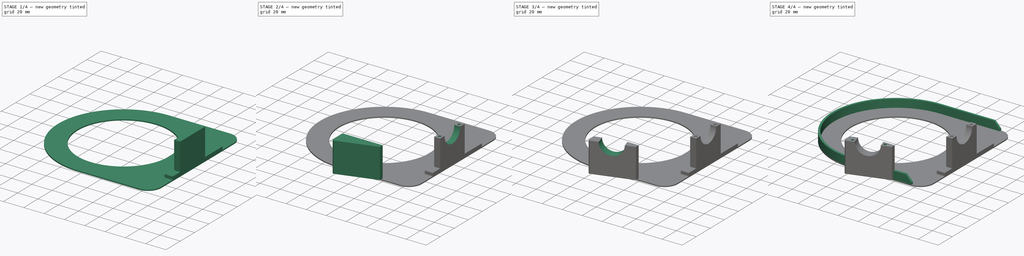
[diagram: build sequence overview — one tinted view per stage of 4, left to right]
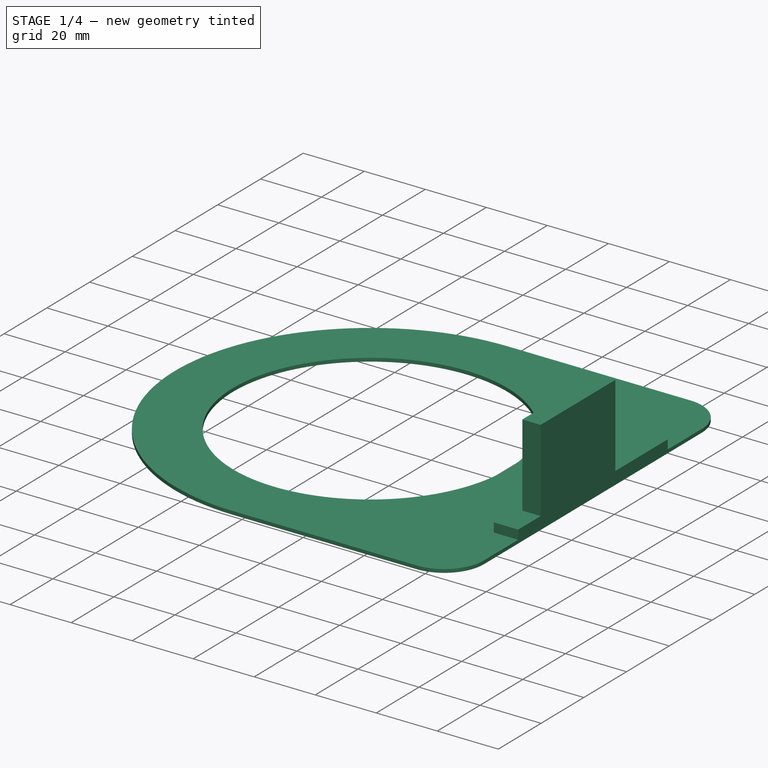
[diagram: stage 1 of 4 — iso view after this stage's code; geometry added in this stage tinted green]
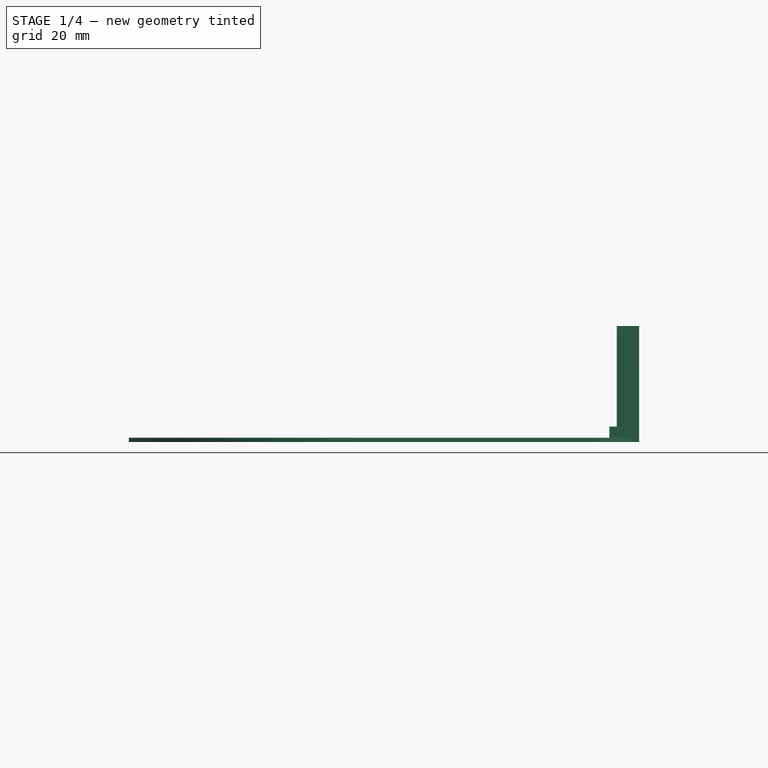
[diagram: stage 1 of 4 — front view after this stage's code; geometry added in this stage tinted green]
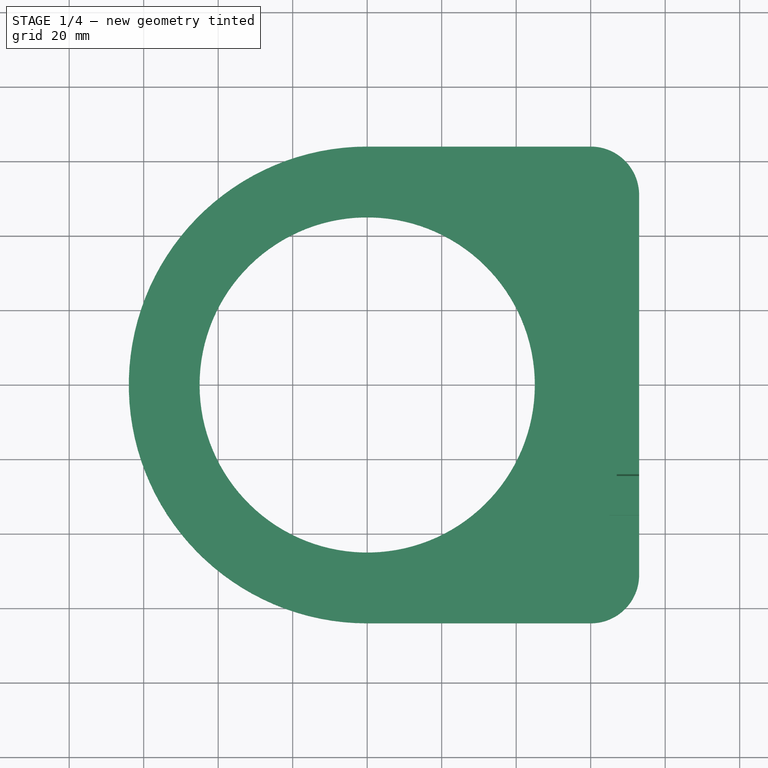
[diagram: stage 1 of 4 — top view after this stage's code; geometry added in this stage tinted green]
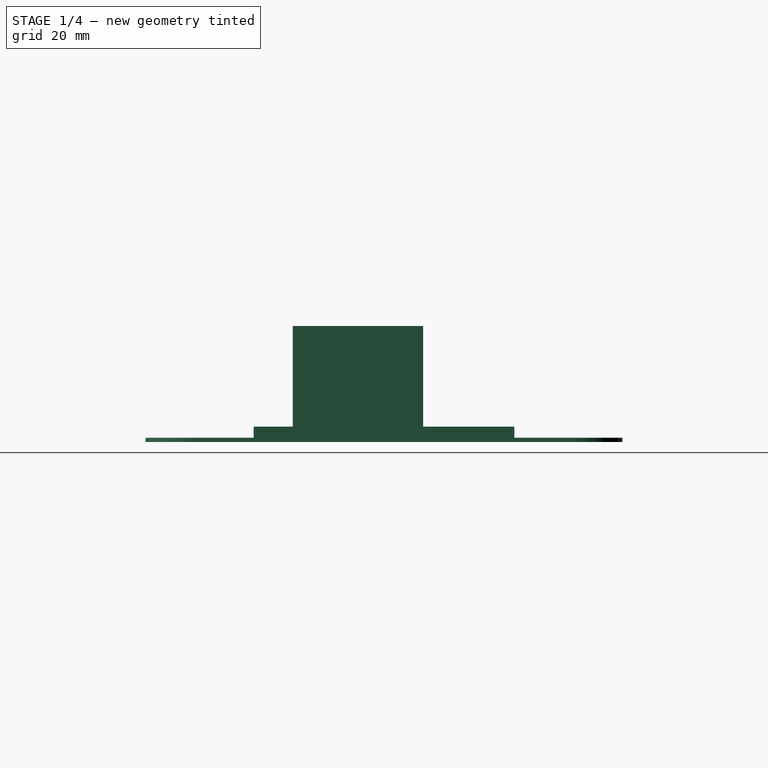
[diagram: stage 1 of 4 — right view after this stage's code; geometry added in this stage tinted green]
FCSTD DOCUMENT  (FreeCAD 0.16R)
Label: chainguard25TRev1.V3
License: All rights reserved
LicenseURL: http://en.wikipedia.org/wiki/All_rights_reserved
objects: Sketcher::SketchObject×11, PartDesign::Pocket×6, PartDesign::Pad×5
note: 33 computed .brp shape members not serialized (recipe doc carries the construction recipe); baked Part::Feature solids carry a one-line shape summary decoded from their .brp

FEATURE [Sketcher::SketchObject] Sketch001
  sketch-geometry (7):
    g0: LineSegment StartX=60 StartY=64 StartZ=0 EndX=0 EndY=64 EndZ=0
    g1: LineSegment StartX=60 StartY=-64 StartZ=0 EndX=0 EndY=-64 EndZ=0
    g2: ArcOfCircle CenterX=8.21903e-05 CenterY=0 CenterZ=0 NormalX=0 NormalY=0 NormalZ=1 Radius=64 StartAngle=1.5708 EndAngle=4.71239
    g3: Circle CenterX=0 CenterY=0 CenterZ=0 NormalX=0 NormalY=0 NormalZ=1 Radius=45
    g4: ArcOfCircle CenterX=60 CenterY=51 CenterZ=0 NormalX=0 NormalY=0 NormalZ=1 Radius=13 StartAngle=0 EndAngle=1.5708
    g5: ArcOfCircle CenterX=60 CenterY=-51 CenterZ=0 NormalX=0 NormalY=0 NormalZ=1 Radius=13 StartAngle=4.71239 EndAngle=6.28319
    g6: LineSegment StartX=73 StartY=51 StartZ=0 EndX=73 EndY=-51 EndZ=0
  constraints (23):
    c: Horizontal(g0)
    c: Horizontal(g1)
    c: Coincident(g2,g1)
    c: Coincident(g0,g2)
    c: DistanceX(g1,g0) = 0
    c: Equal(g0,g1)
    c: DistanceY(g1,g0) = 128
    c: Radius(g2) = 64
    c: Symmetric(g1,g0,g-1)
    c: Radius(g3) = 45
    c: Coincident(g3,g-1)
    c: PointOnObject(g4,g0)
    c: Radius(g4) = 13
    c: DistanceX(g0,g0) = 60
    c: Equal(g5,g4)
    c: Vertical(g6)
    c: DistanceX(g-1,g6) = 73
    c: Symmetric(g6,g6,g-1)
    c: DistanceY(g6,g6) = 102
    c: Coincident(g4,g6)
    c: Coincident(g5,g6)
    c: Coincident(g1,g5)
    c: Coincident(g0,g4)
FEATURE [PartDesign::Pad] Pad  label="Faceplate"
  Length = 1.12
  Length2 = 100
  Reversed = true
  Sketch = -> Sketch001
  Type = 0
FEATURE [Sketcher::SketchObject] Sketch004  label="BossST"
  sketch-geometry (5):
    g0: LineSegment StartX=41.8431 StartY=-62 StartZ=0 EndX=1.8431 EndY=-62 EndZ=0
    g1: LineSegment StartX=1.8431 StartY=-62 StartZ=0 EndX=1.8431 EndY=-75.5264 EndZ=0
    g2: LineSegment StartX=41.8431 StartY=-66 StartZ=0 EndX=41.8431 EndY=-62 EndZ=0
    g3: LineSegment StartX=4.42785 StartY=-77.439 StartZ=0 EndX=41.8431 EndY=-66 EndZ=0
    g4: ArcOfCircle CenterX=3.8431 CenterY=-75.5264 CenterZ=0 NormalX=0 NormalY=0 NormalZ=1 Radius=2 StartAngle=3.14159 EndAngle=5.00909
  constraints (13):
    c: Coincident(g0,g1)
    c: Vertical(g1)
    c: Vertical(g2)
    c: DistanceX(g0,g0) = 40
    c: Angle(g3) = 0.296706
    c: DistanceY(g0,g-1) = 62
    c: Horizontal(g0)
    c: DistanceY(g2,g2) = 4
    c: Coincident(g2,g0)
    c: Coincident(g3,g2)
    c: Tangent(g3,g4) = -1.5708
    c: Tangent(g1,g4) = -1.5708
    c: Radius(g4) = 2
FEATURE [Sketcher::SketchObject] Sketch
  Support = -> Pad [Face8]
  sketch-geometry (4):
    g0: LineSegment StartX=65 StartY=35 StartZ=0 EndX=73 EndY=35 EndZ=0
    g1: LineSegment StartX=73 StartY=35 StartZ=0 EndX=73 EndY=-35 EndZ=0
    g2: LineSegment StartX=73 StartY=-35 StartZ=0 EndX=65 EndY=-35 EndZ=0
    g3: LineSegment StartX=65 StartY=-35 StartZ=0 EndX=65 EndY=35 EndZ=0
  constraints (12):
    c: Coincident(g0,g1)
    c: Coincident(g1,g2)
    c: Coincident(g2,g3)
    c: Coincident(g3,g0)
    c: Horizontal(g0)
    c: Horizontal(g2)
    c: Vertical(g1)
    c: Vertical(g3)
    c: Symmetric(g0,g2,g-1)
    c: DistanceX(g0,g0) = 8
    c: DistanceX(g-1,g0) = 73
    c: DistanceY(g3,g3) = 70
FEATURE [PartDesign::Pad] Pad003  label="SyncStiffener"
  Length = 3
  Length2 = 100
  Sketch = -> Sketch
  Type = 0
FEATURE [Sketcher::SketchObject] Sketch008
  Placement = pos=(0,0,3) rot=(0,0,1;0rad)
  Support = -> Pad003 [Face14]
  sketch-geometry (4):
    g0: LineSegment StartX=67 StartY=10.5 StartZ=0 EndX=73 EndY=10.5 EndZ=0
    g1: LineSegment StartX=73 StartY=10.5 StartZ=0 EndX=73 EndY=-24.5 EndZ=0
    g2: LineSegment StartX=73 StartY=-24.5 StartZ=0 EndX=67 EndY=-24.5 EndZ=0
    g3: LineSegment StartX=67 StartY=-24.5 StartZ=0 EndX=67 EndY=10.5 EndZ=0
  constraints (12):
    c: Coincident(g0,g1)
    c: Coincident(g1,g2)
    c: Coincident(g2,g3)
    c: Coincident(g3,g0)
    c: Horizontal(g0)
    c: Horizontal(g2)
    c: Vertical(g1)
    c: Vertical(g3)
    c: DistanceX(g0) = 73
    c: DistanceX(g0,g0) = 6
    c: DistanceY(g1,g1) = 35
    c: DistanceY(g-1,g0) = 10.5
FEATURE [PartDesign::Pad] Pad004  label="SyncTubeBoss"
  Length = 27
  Length2 = 100
  Sketch = -> Sketch008
  Type = 0
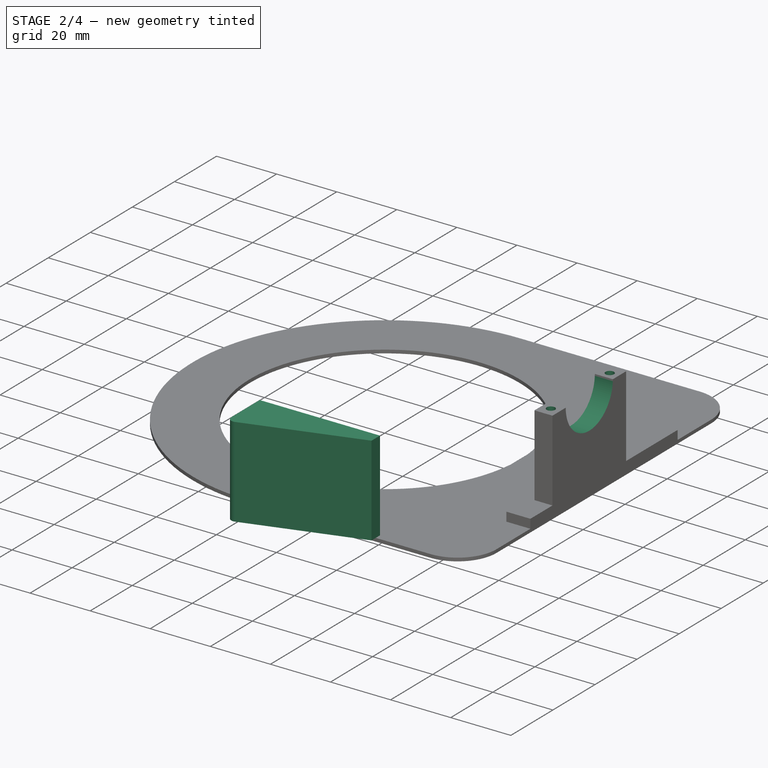
[diagram: stage 2 of 4 — iso view after this stage's code; geometry added in this stage tinted green]
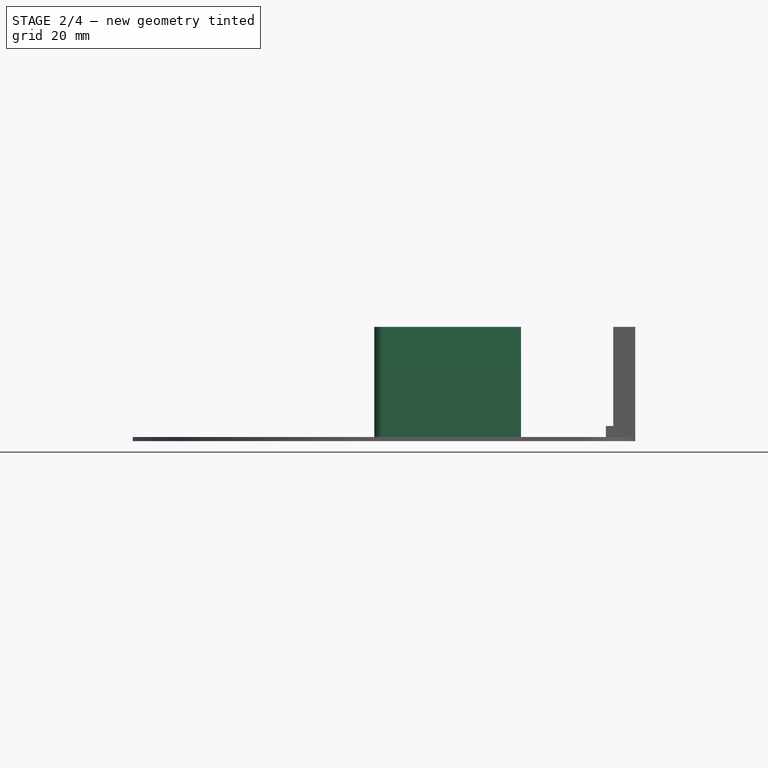
[diagram: stage 2 of 4 — front view after this stage's code; geometry added in this stage tinted green]
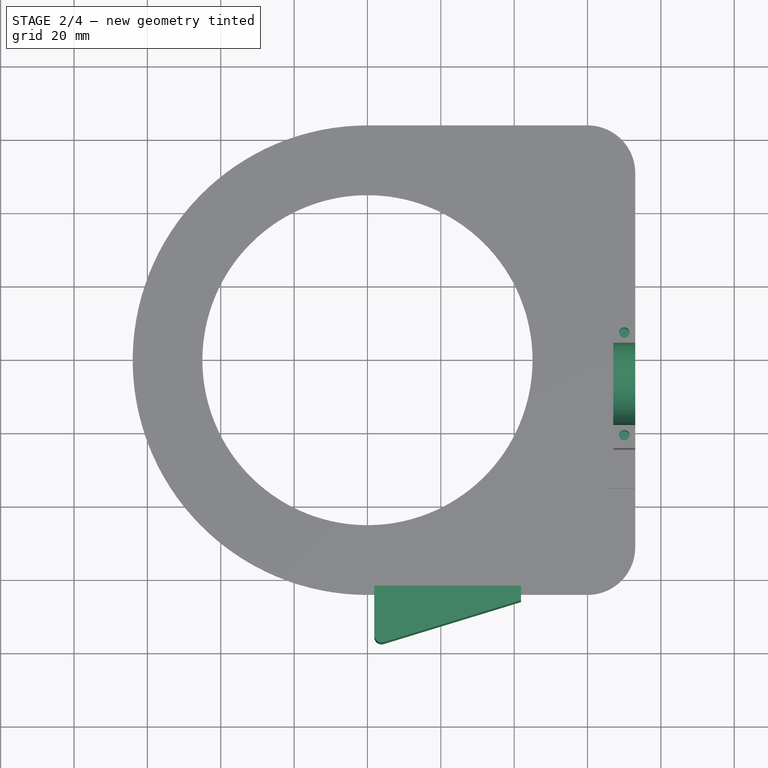
[diagram: stage 2 of 4 — top view after this stage's code; geometry added in this stage tinted green]
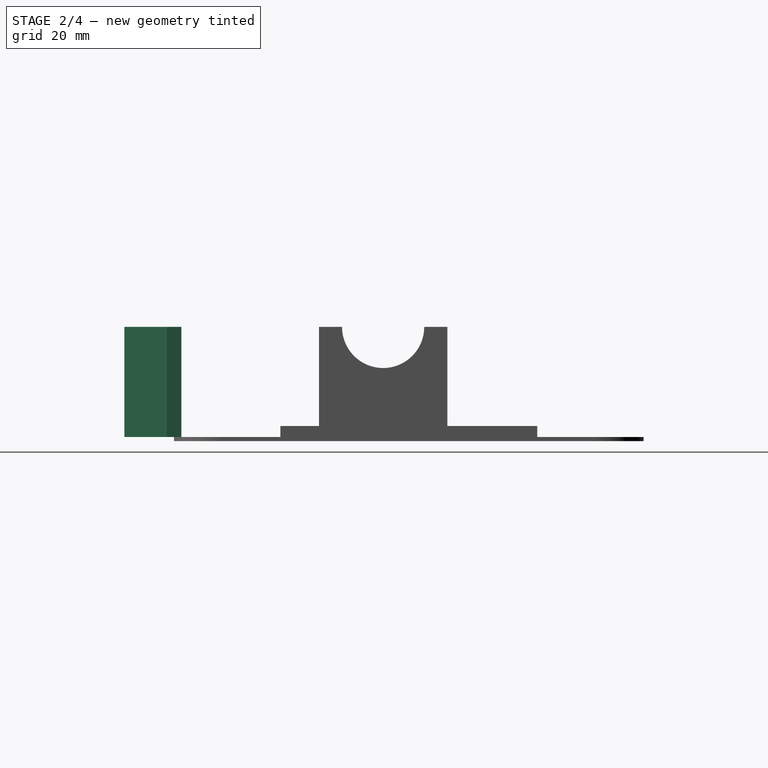
[diagram: stage 2 of 4 — right view after this stage's code; geometry added in this stage tinted green]
FEATURE [PartDesign::Pad] Pad005  label="ST Boss"
  Length = 30
  Length2 = 100
  Sketch = -> Sketch004
  Type = 0
FEATURE [PartDesign::Pocket] Pocket008
  Length = 5
  Sketch = -> Sketch009
  Type = 1
FEATURE [Sketcher::SketchObject] Sketch013
  ExternalGeometry = -> [Pocket008]
  Placement = pos=(0,0,30) rot=(0,0,1;0rad)
  Support = -> Pocket008 [Face21]
  sketch-geometry (2):
    g0: Circle CenterX=70 CenterY=7 CenterZ=0 NormalX=0 NormalY=0 NormalZ=1 Radius=1.4
    g1: Circle CenterX=70 CenterY=-21 CenterZ=0 NormalX=0 NormalY=0 NormalZ=1 Radius=1.4
  constraints (6):
    c: Radius(g0) = 1.4
    c: Equal(g0,g1)
    c: Distance(g0,g1) = 28
    c: Distance(g0,g-4) = 3
    c: Distance(g1,g-6) = 3
    c: Distance(g0,g-3) = 2.8
FEATURE [PartDesign::Pocket] Pocket009
  Length = 15
  Sketch = -> Sketch013
  Type = 0
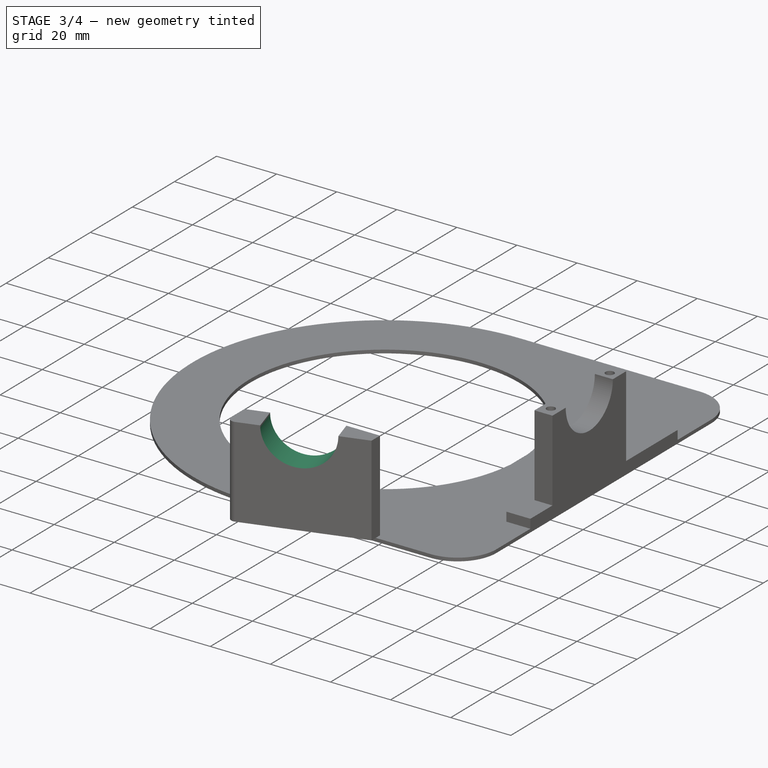
[diagram: stage 3 of 4 — iso view after this stage's code; geometry added in this stage tinted green]
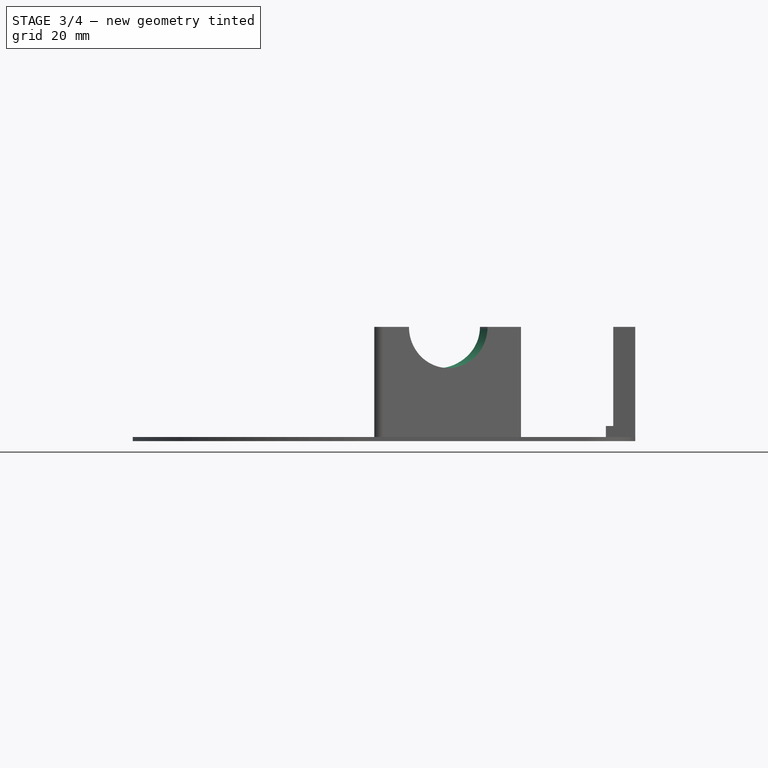
[diagram: stage 3 of 4 — front view after this stage's code; geometry added in this stage tinted green]
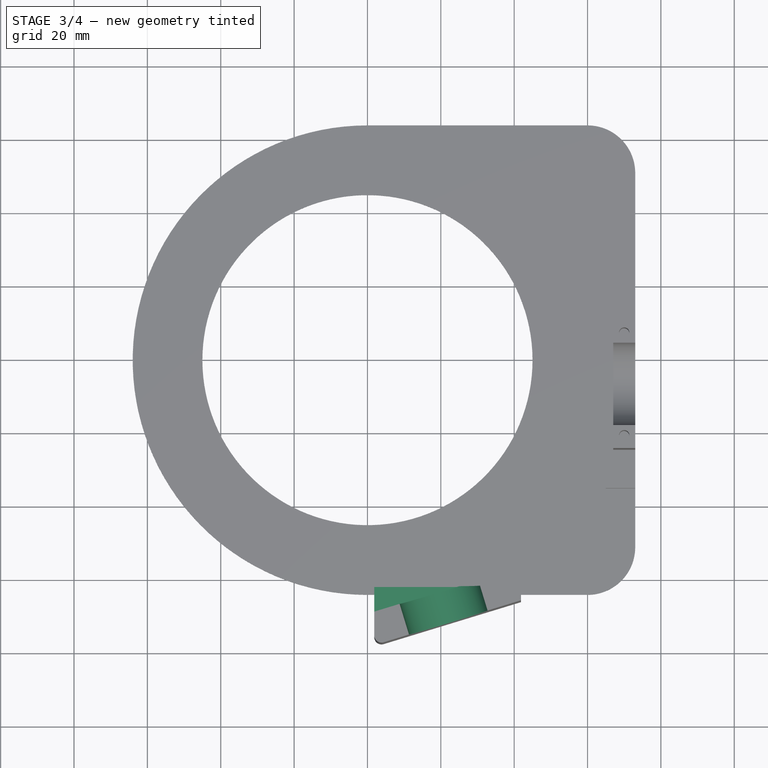
[diagram: stage 3 of 4 — top view after this stage's code; geometry added in this stage tinted green]
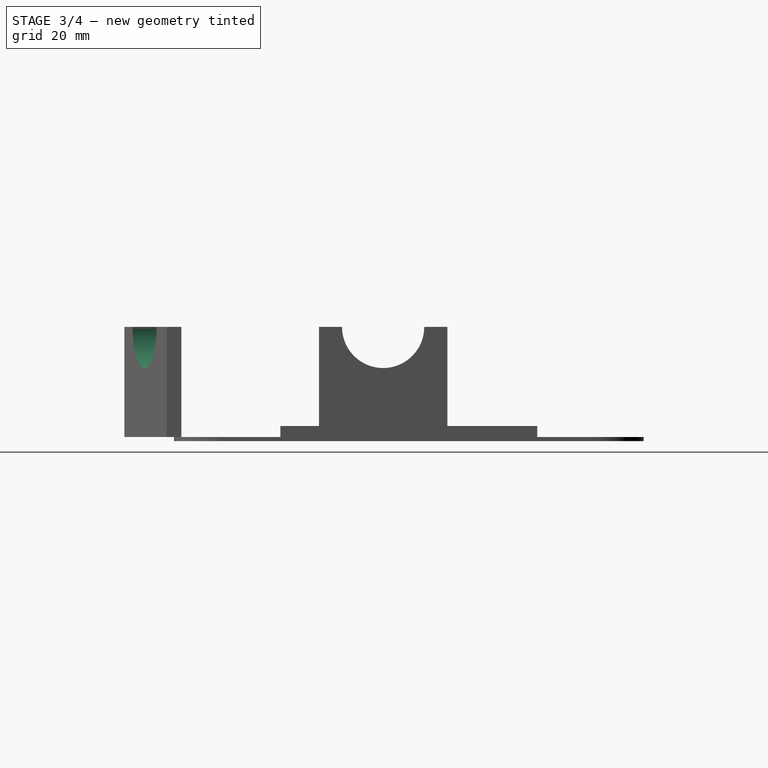
[diagram: stage 3 of 4 — right view after this stage's code; geometry added in this stage tinted green]
FEATURE [Sketcher::SketchObject] Sketch005
  Placement = pos=(22.0436,-72.1013,0) rot=(0.978386,0.146221,0.146221;1.59265rad)
  Support = -> Pad005 [Face3]
  sketch-geometry (1):
    g0: Circle CenterX=0 CenterY=30 CenterZ=0 NormalX=0 NormalY=0 NormalZ=1 Radius=11.2
  constraints (3):
    c: Radius(g0) = 11.2
    c: DistanceY(g-1,g0) = 30
    c: PointOnObject(g0,g-2)
FEATURE [PartDesign::Pocket] Pocket
  Length = 5
  Sketch = -> Sketch005
  Type = 1
FEATURE [Sketcher::SketchObject] Sketch007
  Placement = pos=(0,0,30) rot=(0,0,1;0rad)
  Support = -> Pocket [Face4]
  sketch-geometry (4):
    g0: LineSegment StartX=-4.66376 StartY=-53.9533 StartZ=0 EndX=-5.90948 EndY=-71.4649 EndZ=0
    g1: LineSegment StartX=-5.90948 StartY=-71.4649 StartZ=0 EndX=38.1328 EndY=-58 EndZ=0
    g2: LineSegment StartX=38.1328 StartY=-58 StartZ=0 EndX=37.116 EndY=-54.0061 EndZ=0
    g3: LineSegment StartX=37.116 StartY=-54.0061 StartZ=0 EndX=-4.66376 EndY=-53.9533 EndZ=0
  constraints (12):
    c: Coincident(g0,g1)
    c: Coincident(g1,g2)
    c: Coincident(g2,g3)
    c: Coincident(g0,g3)
    c: Distance(g3) = 41.7798
    c: Distance(g0) = 17.5559
    c: Distance(g1) = 46.0546
    c: Distance(g2) = 4.12132
    c: DistanceX(g0,g-1) = 4.66376
    c: DistanceX(g0,g-1) = 5.90948
    c: DistanceY(g2,g-1) = 54.0061
    c: DistanceX(g1) = 38.1328
FEATURE [PartDesign::Pocket] Pocket006
  Length = 22
  Sketch = -> Sketch007
  Type = 0
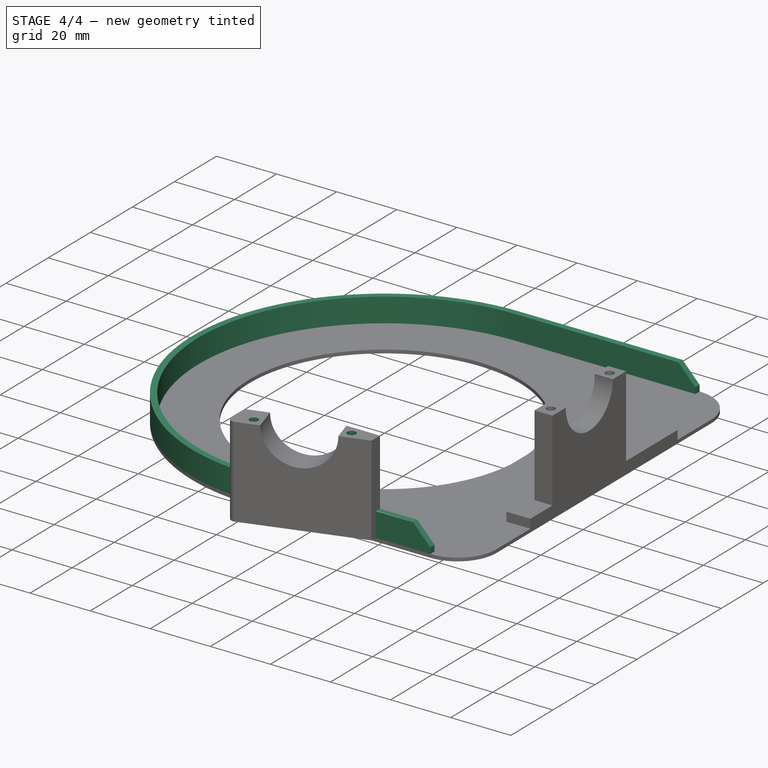
[diagram: stage 4 of 4 — iso view after this stage's code; geometry added in this stage tinted green]
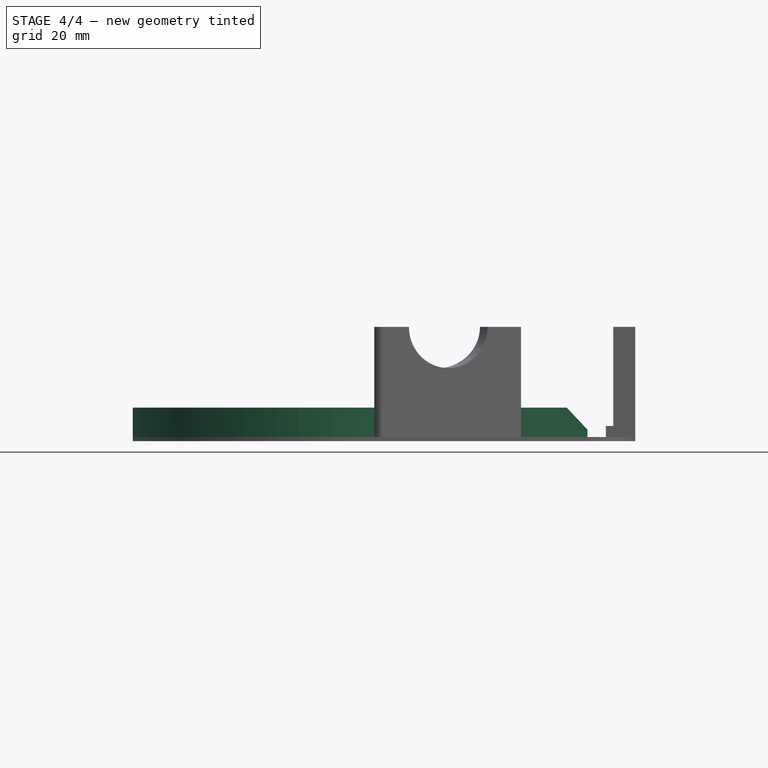
[diagram: stage 4 of 4 — front view after this stage's code; geometry added in this stage tinted green]
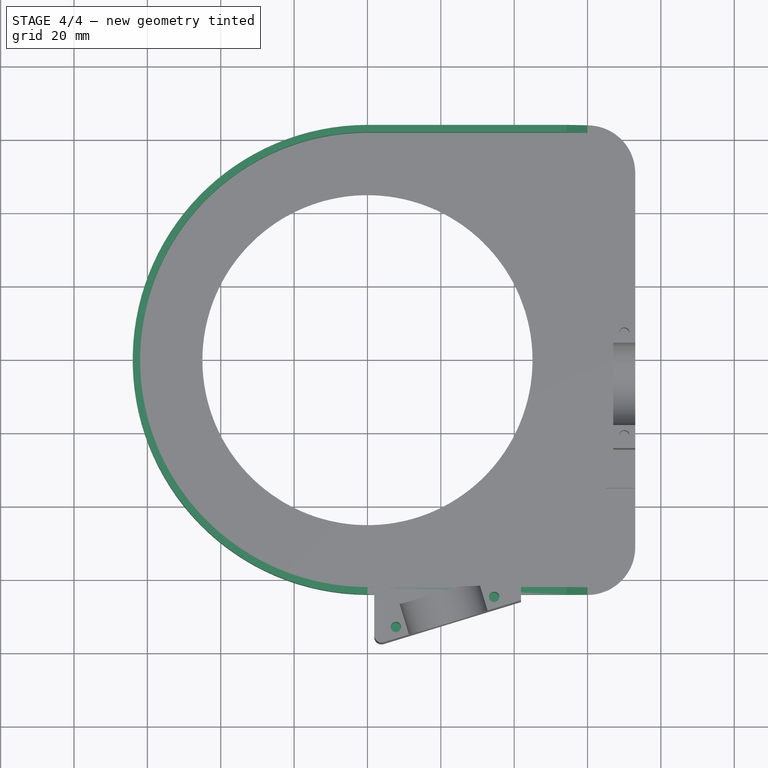
[diagram: stage 4 of 4 — top view after this stage's code; geometry added in this stage tinted green]
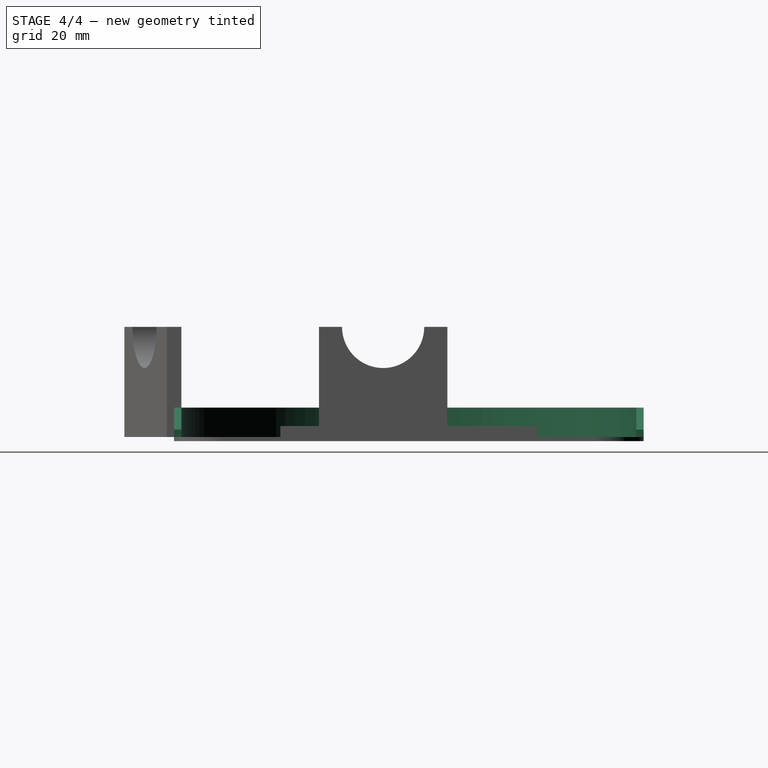
[diagram: stage 4 of 4 — right view after this stage's code; geometry added in this stage tinted green]
FEATURE [Sketcher::SketchObject] Sketch002
  sketch-geometry (8):
    g0: LineSegment StartX=60 StartY=64 StartZ=0 EndX=0 EndY=64 EndZ=0
    g1: LineSegment StartX=60 StartY=-64 StartZ=0 EndX=0 EndY=-64 EndZ=0
    g2: ArcOfCircle CenterX=6.44712e-05 CenterY=0 CenterZ=0 NormalX=0 NormalY=0 NormalZ=1 Radius=64 StartAngle=1.5708 EndAngle=4.71239
    g3: LineSegment StartX=0 StartY=62 StartZ=0 EndX=60 EndY=62 EndZ=0
    g4: LineSegment StartX=0 StartY=-62 StartZ=0 EndX=60 EndY=-62 EndZ=0
    g5: LineSegment StartX=60 StartY=64 StartZ=0 EndX=60 EndY=62 EndZ=0
    g6: LineSegment StartX=60 StartY=-62 StartZ=0 EndX=60 EndY=-64 EndZ=0
    g7: ArcOfCircle CenterX=1.45954e-05 CenterY=0 CenterZ=0 NormalX=0 NormalY=0 NormalZ=1 Radius=62 StartAngle=1.5708 EndAngle=4.71239
  constraints (25):
    c: Horizontal(g0)
    c: Horizontal(g1)
    c: Coincident(g2,g1)
    c: Coincident(g0,g2)
    c: DistanceX(g1,g0) = 0
    c: Equal(g0,g1)
    c: DistanceY(g1,g0) = 128
    c: Radius(g2) = 64
    c: Symmetric(g1,g0,g-1)
    c: Radius(g7) = 62
    c: Parallel(g0,g3)
    c: DistanceY(g3,g0) = 2
    c: DistanceY(g1,g4) = 2
    c: Parallel(g4,g1)
    c: DistanceX(g0,g3) = 0
    c: DistanceX(g4) = 0
    c: DistanceX(g0) = 60
    c: Equal(g3,g0)
    c: Equal(g4,g0)
    c: Coincident(g4,g6)
    c: Coincident(g6,g1)
    c: Coincident(g5,g3)
    c: Coincident(g5,g0)
    c: Coincident(g7,g3)
    c: Coincident(g7,g4)
FEATURE [PartDesign::Pad] Pad001  label="Connector"
  Length = 8
  Length2 = 100
  Sketch = -> Sketch002
  Type = 0
FEATURE [Sketcher::SketchObject] Sketch009
  ExternalGeometry = -> [Pad004]
  Placement = pos=(73,0,0) rot=(0.57735,0.57735,0.57735;2.0944rad)
  Support = -> Pad004 [Face15]
  sketch-geometry (1):
    g0: Circle CenterX=-7 CenterY=30 CenterZ=0 NormalX=0 NormalY=0 NormalZ=1 Radius=11.2
  constraints (3):
    c: DistanceY(g-1,g0) = 30
    c: Radius(g0) = 11.2
    c: Symmetric(g-3,g-4,g0)
FEATURE [Sketcher::SketchObject] Sketch011
  Placement = pos=(0,64,0) rot=(0,0.707107,0.707107;3.14159rad)
  Support = -> Pad001 [Face1]
  sketch-geometry (4):
    g0: LineSegment StartX=-53.9525 StartY=8.40024 StartZ=0 EndX=-64.2023 EndY=10.8364 EndZ=0
    g1: LineSegment StartX=-64.2023 StartY=10.8364 StartZ=0 EndX=-61.1872 EndY=0.741769 EndZ=0
    g2: LineSegment StartX=-61.1872 StartY=0.741769 StartZ=0 EndX=-53.9525 EndY=8.40024 EndZ=0
    g3: Circle [constr] CenterX=-59.7806 CenterY=6.65947 CenterZ=0 NormalX=0 NormalY=0 NormalZ=1 Radius=6.08256
  constraints (14):
    c: Coincident(g0,g1)
    c: Coincident(g1,g2)
    c: Coincident(g2,g0)
    c: Equal(g0,g1)
    c: Equal(g0,g2)
    c: PointOnObject(g0,g3)
    c: PointOnObject(g1,g3)
    c: PointOnObject(g2,g3)
    c: DistanceY(g-1,g0) = 8.40024
    c: DistanceX(g0,g-1) = 53.9525
    c: Equal(g2,g0)
    c: Equal(g0,g1)
    c: Distance(g2) = 10.5353
    c: Angle(g0) = 2.90824
FEATURE [PartDesign::Pocket] Pocket005  label="Bevel_connector"
  Length = 5
  Sketch = -> Sketch011
  Type = 1
FEATURE [Sketcher::SketchObject] Sketch012
  ExternalGeometry = -> [Pocket006]
  Placement = pos=(0,0,30) rot=(0,0,1;0rad)
  Support = -> Pocket006 [Face11]
  sketch-geometry (2):
    g0: Circle CenterX=7.76478 CenterY=-73.2817 CenterZ=0 NormalX=0 NormalY=0 NormalZ=1 Radius=1.4
    g1: Circle CenterX=34.5413 CenterY=-65.0953 CenterZ=0 NormalX=0 NormalY=0 NormalZ=1 Radius=1.4
  constraints (6):
    c: Radius(g1) = 1.4
    c: Equal(g1,g0)
    c: Distance(g0,g1) = 28
    c: Distance(g0,g-6) = 3
    c: Distance(g1,g-5) = 3
    c: Distance(g0,g-3) = 2.8
FEATURE [PartDesign::Pocket] Pocket007
  Length = 12
  Sketch = -> Sketch012
  Type = 0
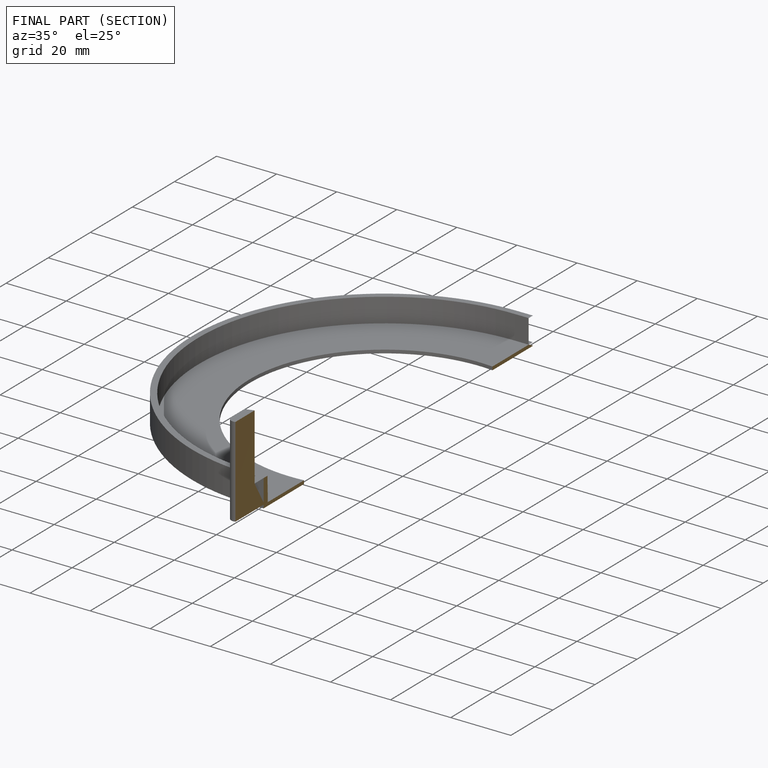
[diagram: finished part — half-section view (interior)]
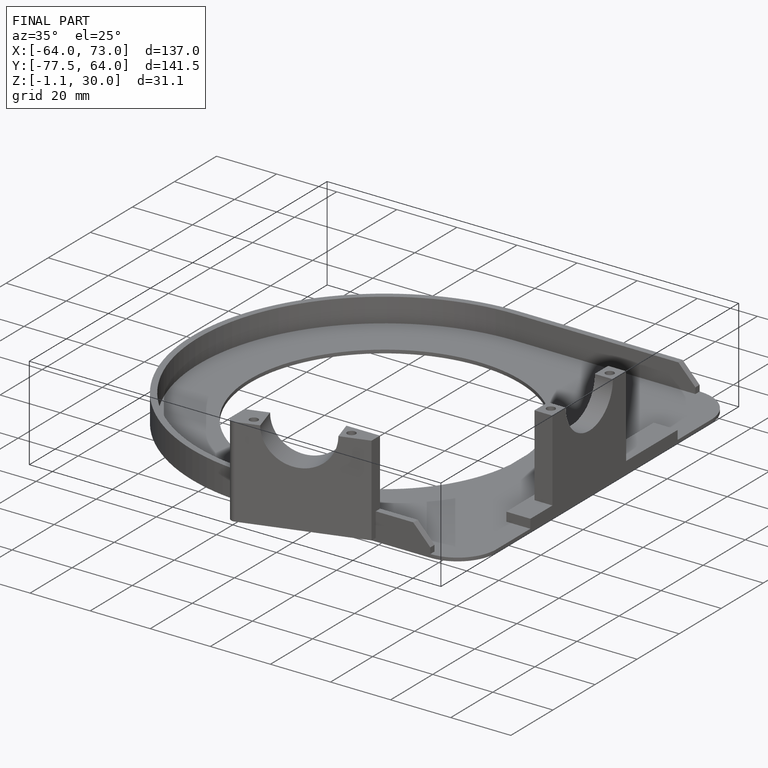
[diagram: finished part — iso view with bounding-box wireframe]
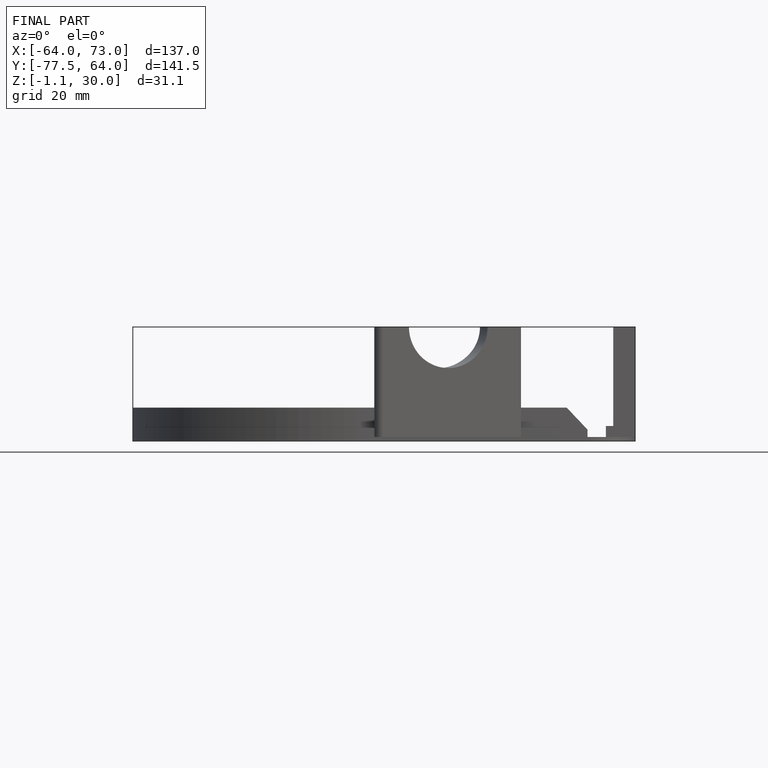
[diagram: finished part — front view with bounding-box wireframe]
